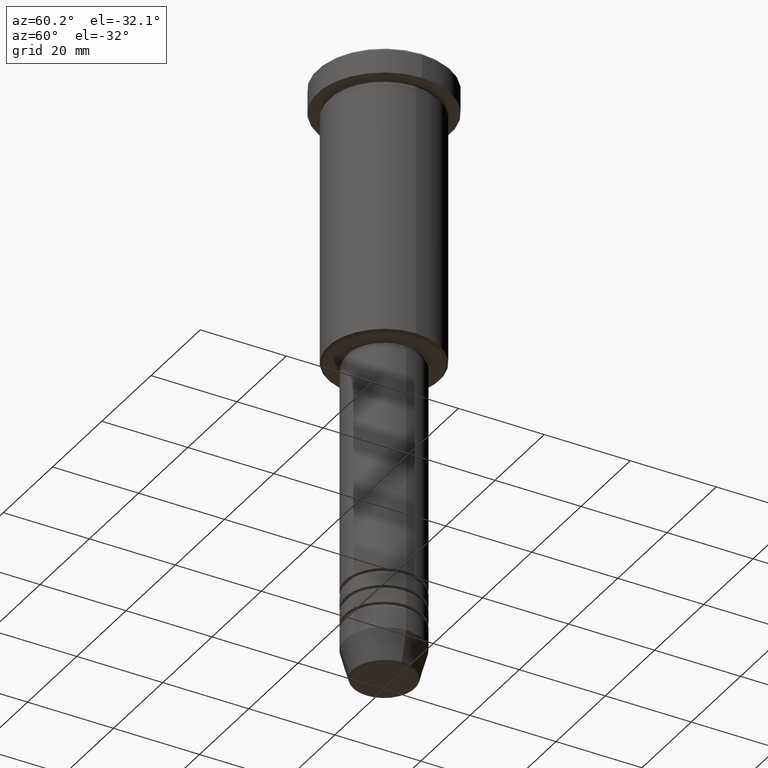
[diagram: clean part render]
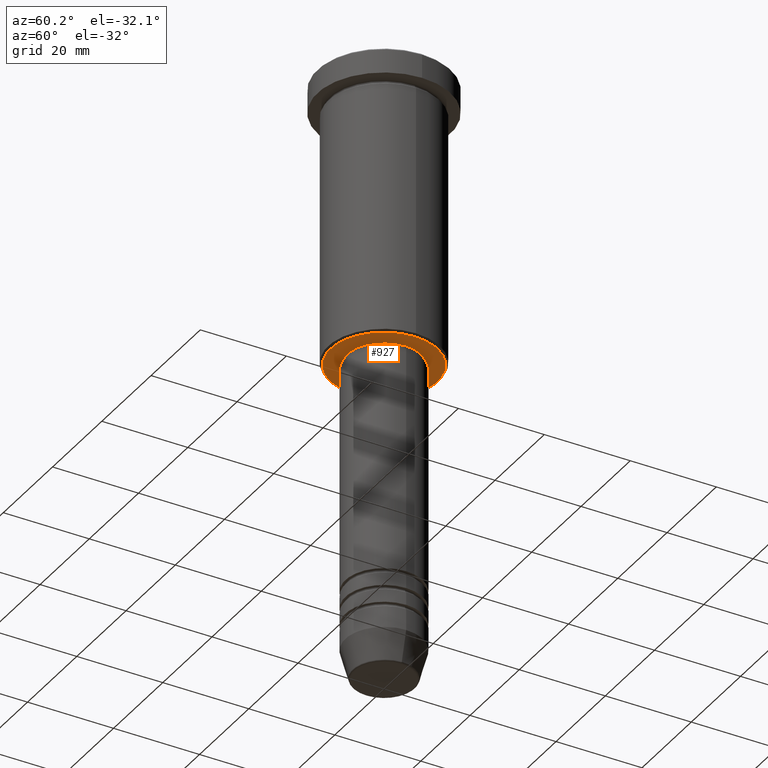
[diagram: same view with one face highlighted and labeled with its STEP entity id]
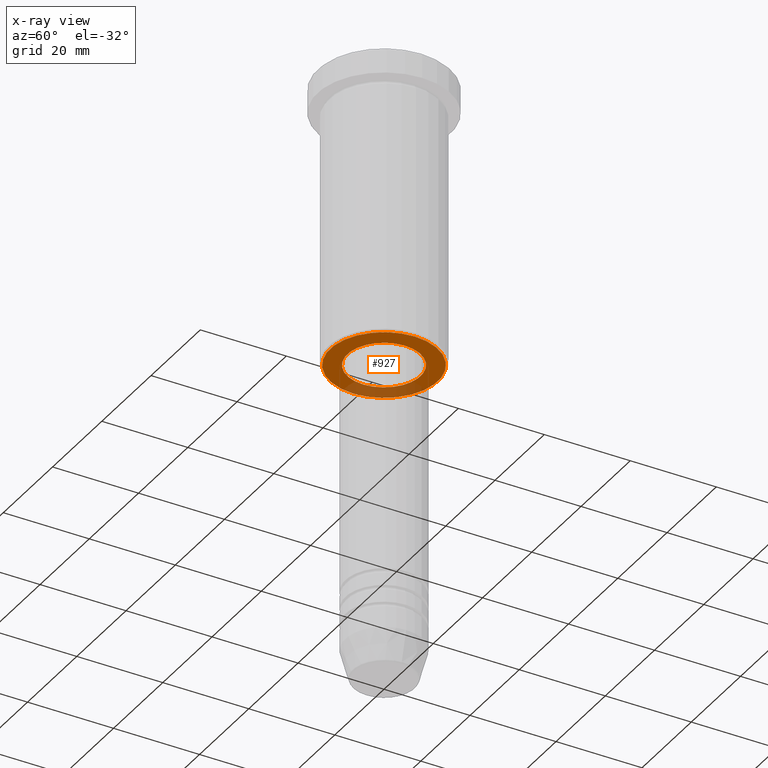
[diagram: x-ray of the same camera — body ghosted, the highlighted face saturated]
A machine part, auxiliary view. The second image highlights one B-rep face of the part: STEP entity #927.
The next image is the same camera in x-ray: the body ghosted, the highlighted face saturated — about 24% of this face is hidden behind the body in this view.
In plain terms, the highlighted planar face has unit normal (0, 0, -1).
Its self-contained STEP definition (entity closure, byte-faithful):
#60 = DIRECTION ( 'NONE',  ( 1.000000000000000000, 0.000000000000000000, 0.000000000000000000 ) ) ;
#71 = CARTESIAN_POINT ( 'NONE',  ( 0.000000000000000000, 13.00000000000000000, -66.00000000000000000 ) ) ;
#76 = ORIENTED_EDGE ( 'NONE', *, *, #760, .T. ) ;
#79 = DIRECTION ( 'NONE',  ( 0.000000000000000000, 0.000000000000000000, -1.000000000000000000 ) ) ;
#119 = CARTESIAN_POINT ( 'NONE',  ( -12.49999999999996980, 1.561424668912873336E-15, -66.00000000000000000 ) ) ;
#131 = AXIS2_PLACEMENT_3D ( 'NONE', #71, #79, #244 ) ;
#143 = VERTEX_POINT ( 'NONE', #704 ) ;
#150 = AXIS2_PLACEMENT_3D ( 'NONE', #545, #882, #60 ) ;
#155 = ORIENTED_EDGE ( 'NONE', *, *, #1159, .T. ) ;
#173 = FACE_BOUND ( 'NONE', #336, .T. ) ;
#179 = PLANE ( 'NONE',  #131 ) ;
#206 = AXIS2_PLACEMENT_3D ( 'NONE', #784, #447, #385 ) ;
#221 = CIRCLE ( 'NONE', #1172, 12.49999999999996980 ) ;
#244 = DIRECTION ( 'NONE',  ( -1.000000000000000000, 0.000000000000000000, -0.000000000000000000 ) ) ;
#304 = DIRECTION ( 'NONE',  ( -1.000000000000000000, 0.000000000000000000, 0.000000000000000000 ) ) ;
#336 = EDGE_LOOP ( 'NONE', ( #76, #508 ) ) ;
#355 = CARTESIAN_POINT ( 'NONE',  ( 12.49999999999996980, 0.000000000000000000, -66.00000000000000000 ) ) ;
#383 = VERTEX_POINT ( 'NONE', #119 ) ;
#385 = DIRECTION ( 'NONE',  ( 1.000000000000000000, 0.000000000000000000, 0.000000000000000000 ) ) ;
#432 = CARTESIAN_POINT ( 'NONE',  ( 0.000000000000000000, 0.000000000000000000, -66.00000000000000000 ) ) ;
#447 = DIRECTION ( 'NONE',  ( -0.000000000000000000, -0.000000000000000000, 1.000000000000000000 ) ) ;
#452 = CARTESIAN_POINT ( 'NONE',  ( 8.500000000000000000, 0.000000000000000000, -66.00000000000000000 ) ) ;
#477 = VERTEX_POINT ( 'NONE', #355 ) ;
#487 = DIRECTION ( 'NONE',  ( 0.000000000000000000, 0.000000000000000000, -1.000000000000000000 ) ) ;
#508 = ORIENTED_EDGE ( 'NONE', *, *, #936, .T. ) ;
#539 = ORIENTED_EDGE ( 'NONE', *, *, #1044, .T. ) ;
#545 = CARTESIAN_POINT ( 'NONE',  ( 0.000000000000000000, 0.000000000000000000, -66.00000000000000000 ) ) ;
#685 = VERTEX_POINT ( 'NONE', #452 ) ;
#704 = CARTESIAN_POINT ( 'NONE',  ( -8.500000000000000000, 1.040949779275250140E-15, -66.00000000000000000 ) ) ;
#714 = CIRCLE ( 'NONE', #1130, 12.49999999999996980 ) ;
#731 = CIRCLE ( 'NONE', #150, 8.500000000000000000 ) ;
#760 = EDGE_CURVE ( 'NONE', #685, #143, #934, .T. ) ;
#771 = DIRECTION ( 'NONE',  ( -1.000000000000000000, 0.000000000000000000, 0.000000000000000000 ) ) ;
#784 = CARTESIAN_POINT ( 'NONE',  ( 0.000000000000000000, 0.000000000000000000, -66.00000000000000000 ) ) ;
#793 = DIRECTION ( 'NONE',  ( 0.000000000000000000, 0.000000000000000000, -1.000000000000000000 ) ) ;
#882 = DIRECTION ( 'NONE',  ( -0.000000000000000000, -0.000000000000000000, 1.000000000000000000 ) ) ;
#927 = ADVANCED_FACE ( 'NONE', ( #987, #173 ), #179, .T. ) ;
#934 = CIRCLE ( 'NONE', #206, 8.500000000000000000 ) ;
#936 = EDGE_CURVE ( 'NONE', #143, #685, #731, .T. ) ;
#987 = FACE_OUTER_BOUND ( 'NONE', #1055, .T. ) ;
#1015 = CARTESIAN_POINT ( 'NONE',  ( 0.000000000000000000, 0.000000000000000000, -66.00000000000000000 ) ) ;
#1044 = EDGE_CURVE ( 'NONE', #477, #383, #714, .T. ) ;
#1055 = EDGE_LOOP ( 'NONE', ( #539, #155 ) ) ;
#1130 = AXIS2_PLACEMENT_3D ( 'NONE', #1015, #487, #771 ) ;
#1159 = EDGE_CURVE ( 'NONE', #383, #477, #221, .T. ) ;
#1172 = AXIS2_PLACEMENT_3D ( 'NONE', #432, #793, #304 ) ;